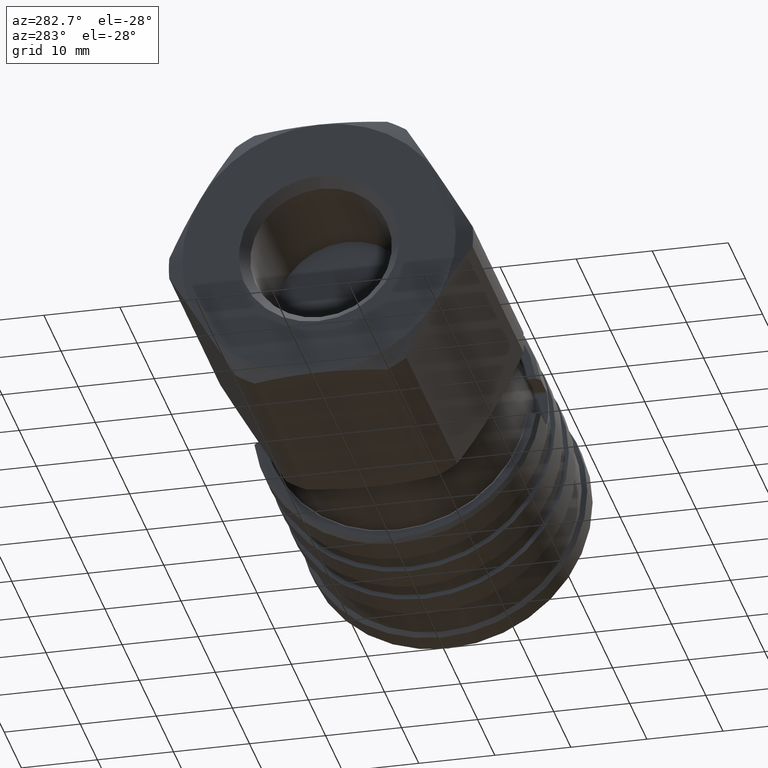
[diagram: clean part render]
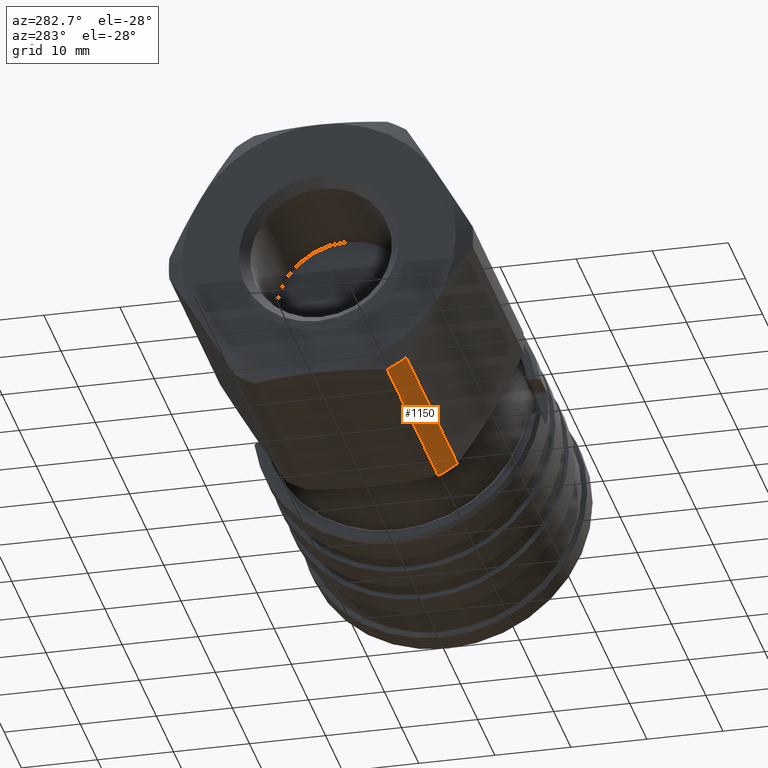
[diagram: same view with one face highlighted and labeled with its STEP entity id]
A machine part, auxiliary view. The second image highlights one B-rep face of the part: STEP entity #1150.
In plain terms, the highlighted cylindrical surface (partial cylindrical patch) has radius 20 mm, axis along (1, -0, -0).
Its self-contained STEP definition (entity closure, byte-faithful):
#72 = EDGE_CURVE ( 'NONE', #1903, #1676, #1347, .T. ) ;
#74 = EDGE_CURVE ( 'NONE', #1903, #1650, #1352, .T. ) ;
#113 = EDGE_CURVE ( 'NONE', #1676, #1826, #486, .T. ) ;
#125 = EDGE_CURVE ( 'NONE', #1826, #1650, #498, .T. ) ;
#486 = CIRCLE ( 'NONE', #792, 19.99999999999999600 ) ;
#498 = LINE ( 'NONE', #1445, #500 ) ;
#500 = VECTOR ( 'NONE', #1477, 1000.000000000000000 ) ;
#792 = AXIS2_PLACEMENT_3D ( 'NONE', #1494, #1493, #1400 ) ;
#1040 = AXIS2_PLACEMENT_3D ( 'NONE', #2805, #2806, #2807 ) ;
#1150 = ADVANCED_FACE ( 'NONE', ( #2274 ), #2275, .T. ) ;
#1347 = LINE ( 'NONE', #1610, #1348 ) ;
#1348 = VECTOR ( 'NONE', #1729, 1000.000000000000000 ) ;
#1352 = CIRCLE ( 'NONE', #2619, 20.00000000000000000 ) ;
#1400 = DIRECTION ( 'NONE',  ( 0.0000000000000000000, 0.0000000000000000000, -1.000000000000000000 ) ) ;
#1445 = CARTESIAN_POINT ( 'NONE',  ( 9.400000000000002100, -8.717797887081342600, -18.00000000000000000 ) ) ;
#1477 = DIRECTION ( 'NONE',  ( 1.000000000000000000, -0.0000000000000000000, -0.0000000000000000000 ) ) ;
#1493 = DIRECTION ( 'NONE',  ( 1.000000000000000000, -0.0000000000000000000, -0.0000000000000000000 ) ) ;
#1494 = CARTESIAN_POINT ( 'NONE',  ( -21.44529946162076000, 0.0000000000000000000, 0.0000000000000000000 ) ) ;
#1610 = CARTESIAN_POINT ( 'NONE',  ( 9.400000000000002100, -11.22955832457921400, -16.54983443527075000 ) ) ;
#1650 = VERTEX_POINT ( 'NONE', #2971 ) ;
#1676 = VERTEX_POINT ( 'NONE', #2987 ) ;
#1729 = DIRECTION ( 'NONE',  ( -1.000000000000000000, 0.0000000000000000000, 0.0000000000000000000 ) ) ;
#1826 = VERTEX_POINT ( 'NONE', #3085 ) ;
#1878 = DIRECTION ( 'NONE',  ( 0.0000000000000000000, 0.0000000000000000000, -1.000000000000000000 ) ) ;
#1884 = CARTESIAN_POINT ( 'NONE',  ( 8.245299461620765800, 0.0000000000000000000, 0.0000000000000000000 ) ) ;
#1903 = VERTEX_POINT ( 'NONE', #3127 ) ;
#1910 = DIRECTION ( 'NONE',  ( 1.000000000000000000, -0.0000000000000000000, -0.0000000000000000000 ) ) ;
#2274 = FACE_OUTER_BOUND ( 'NONE', #3533, .T. ) ;
#2275 = CYLINDRICAL_SURFACE ( 'NONE', #1040, 19.99999999999999600 ) ;
#2328 = ORIENTED_EDGE ( 'NONE', *, *, #72, .T. ) ;
#2352 = ORIENTED_EDGE ( 'NONE', *, *, #113, .T. ) ;
#2364 = ORIENTED_EDGE ( 'NONE', *, *, #125, .T. ) ;
#2420 = ORIENTED_EDGE ( 'NONE', *, *, #74, .F. ) ;
#2619 = AXIS2_PLACEMENT_3D ( 'NONE', #1884, #1910, #1878 ) ;
#2805 = CARTESIAN_POINT ( 'NONE',  ( 9.400000000000002100, 0.0000000000000000000, 0.0000000000000000000 ) ) ;
#2806 = DIRECTION ( 'NONE',  ( 1.000000000000000000, -0.0000000000000000000, -0.0000000000000000000 ) ) ;
#2807 = DIRECTION ( 'NONE',  ( 0.0000000000000000000, 0.0000000000000000000, -1.000000000000000000 ) ) ;
#2971 = CARTESIAN_POINT ( 'NONE',  ( 8.245299461620765800, -8.717797887081342600, -18.00000000000000400 ) ) ;
#2987 = CARTESIAN_POINT ( 'NONE',  ( -21.44529946162076000, -11.22955832457921400, -16.54983443527075000 ) ) ;
#3085 = CARTESIAN_POINT ( 'NONE',  ( -21.44529946162076000, -8.717797887081342600, -18.00000000000000000 ) ) ;
#3127 = CARTESIAN_POINT ( 'NONE',  ( 8.245299461620765800, -11.22955832457921100, -16.54983443527075700 ) ) ;
#3533 = EDGE_LOOP ( 'NONE', ( #2420, #2328, #2352, #2364 ) ) ;